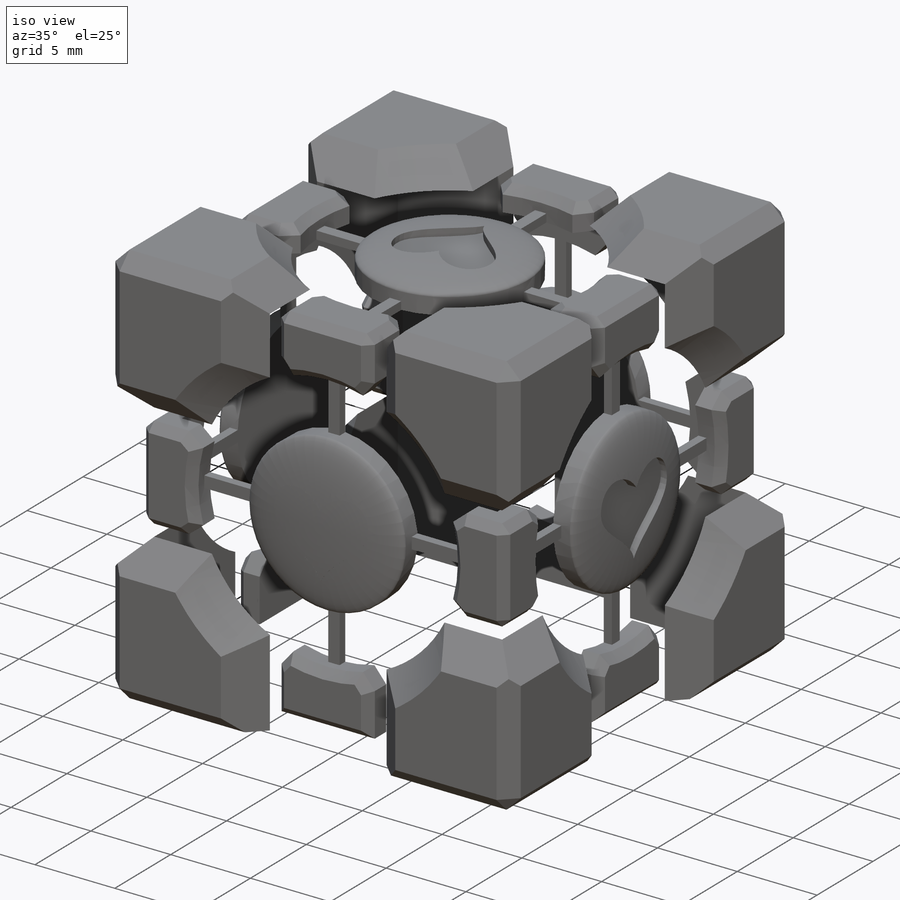
[diagram: iso view]
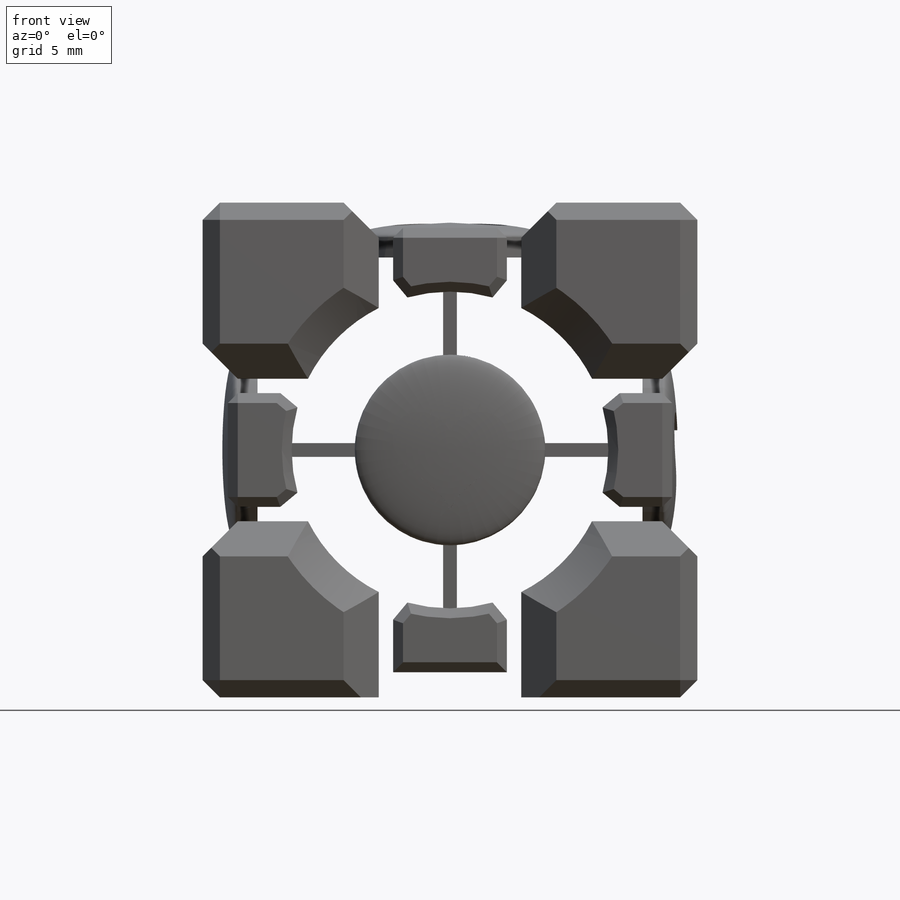
[diagram: front view]
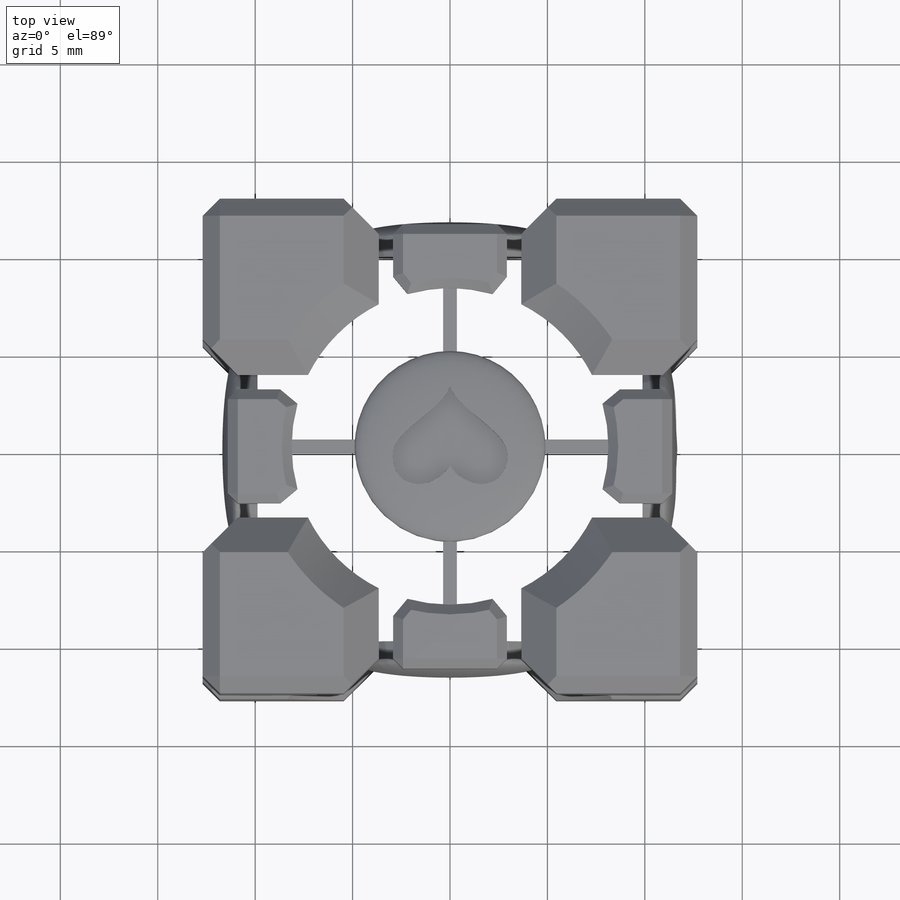
[diagram: top view]
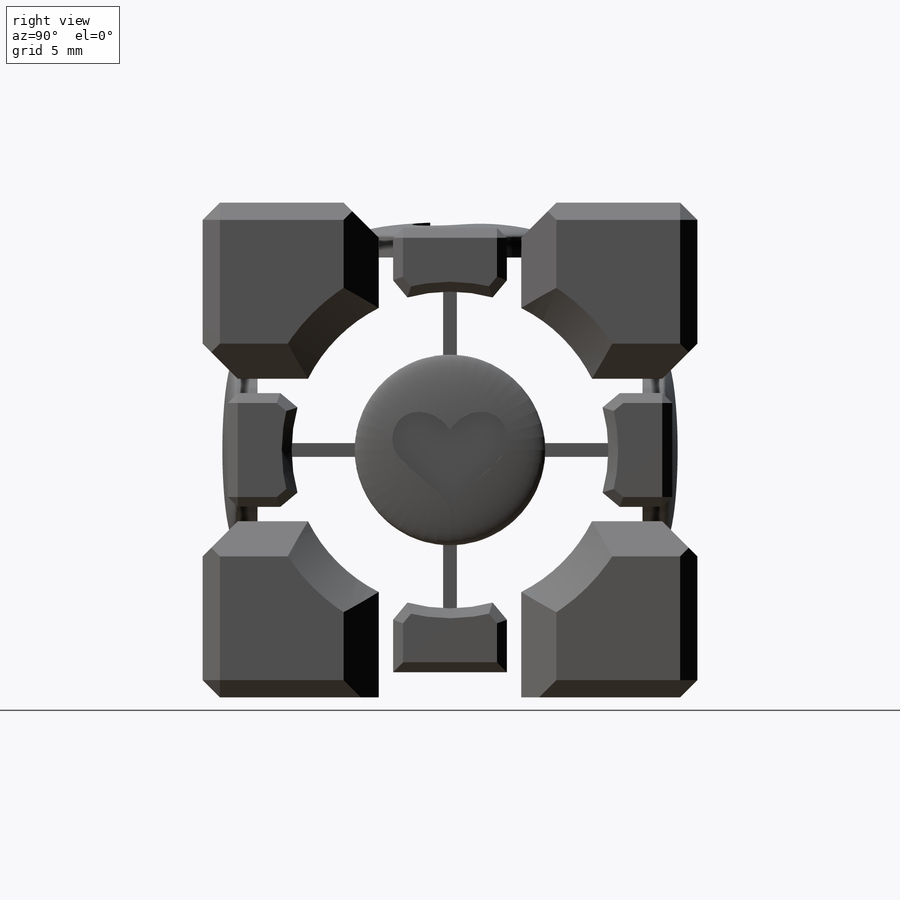
[diagram: right view]
SOLIDWORKS PART (.sldprt)
format: sldprt  version: not decoded by parser v0  size: 4,226,048 bytes
history: native  units: mm
features: sketch x30, extrude x23, cut_extrude x5, mirror x5, chamfer x5, material x1, dome x1, pattern_circular x1, boolean_combine x1 (+12 scaffold rows collapsed)
feature tree (84):
  scaffold x12  (default folders/planes/origin — collapsed)
  material  "Material <not specified>"
  sketch  "Cube Image and Outline"  dims[c1.D3=16.256mm c1.D6=9.779mm c1.D1=25.4mm c1.D2=25.4mm c2.D3=0.5588mm c2.D4=~21.885739mm c2.D1=21.7932mm c2.D2=25.4mm c3.D4=9.0678mm c3.D5=5.842mm]
  sketch  "Sketch10"
  extrude  "Basic Cube"  Depth=21.7932mm
  sketch  "Sketch11"
  extrude  "Large Nub Extrusion"  Depth=1.8034mm
  sketch  "Sketch12"
  extrude  "Small Nub Extrusion"  Depth=0.508mm
  sketch  "Sketch13"
  extrude  "Center Circe Mark Extrusion"  Depth=0.0254mm
  sketch  "Optional Crosshair extrude cut"  dims[D1=0.762mm]
  dome  "Circle Mark Rounding"
  sketch  "Sketch19"
  cut_extrude  "Heart Extruded Cut"  Depth=0.254mm
  pattern_circular  "Face Patterning"  Count=4 Angle=90deg
  sketch  "Sketch23"  dims[D1=0.3556mm D2=0.3556mm D3=4.0]
  cut_extrude  "Cut-Extrude3"  Depth=1.016mm
  sketch  "Sketch14"  dims[c1.D1=~14.123659mm c2.D1=90.0deg]
  cut_extrude  "Preparation For Mirroring"  [1 undecoded]
  sketch  "Sketch15"
  cut_extrude  "Preparation for Mirroring 2"  [1 undecoded]
  mirror  "Top Mirror"
  mirror  "Bottom Mirror"
  mirror  "Right Mirror"
  mirror  "Left Mirror"
  mirror  "Back Mirror"
  boolean_combine  "Combine Mirrors "
  chamfer  "Large Nub Face Chamfer"  Distance=1.8288mm Angle=45deg
  chamfer  "Large Nub Outside Chamfer"  Distance=0.889mm Angle=45deg
  chamfer  "Small Nub Chamfer"  Distance=0.508mm Angle=45deg
  sketch  "Sketch17"
  extrude  "Flat Bottom Extrude"  [1 undecoded]
  chamfer  "Bottom Chamfer"  Distance=0.762mm Angle=45deg
  sketch  "Sketch28"
  sketch  "Sketch29"  dims[D1=0.0mm D2=0.0mm]
  sketch  "Sketch30"  dims[D1=0.0mm D2=0.0mm]
  sketch  "Sketch31"  dims[D1=0.0mm]
  sketch  "Sketch32"
  sketch  "Sketch33"  dims[D1=0.0mm]
  cut_extrude  "Cut-Extrude9"  [1 undecoded]
  extrude  "Boss-Extrude1"  Depth=0.508mm
  sketch  "Sketch35"  dims[D1=0.0mm]
  extrude  "Boss-Extrude2"  [1 undecoded]
  extrude  "Boss-Extrude3"  Depth=0.508mm
  sketch  "Sketch36"  dims[D1=0.0mm]
  extrude  "Boss-Extrude4"  [1 undecoded]
  sketch  "Sketch37"
  extrude  "Boss-Extrude5"  [1 undecoded]
  sketch  "Sketch39"
  extrude  "Boss-Extrude6"  [1 undecoded]
  extrude  "Boss-Extrude7"  Depth=0.508mm
  sketch  "Sketch40"
  extrude  "Boss-Extrude8"  [1 undecoded]
  extrude  "Boss-Extrude9"  Depth=0.508mm
  sketch  "Sketch41"  dims[D1=0.0mm]
  extrude  "Boss-Extrude10"  [1 undecoded]
  extrude  "Boss-Extrude11"  Depth=0.508mm
  sketch  "Sketch43"
  extrude  "Boss-Extrude12"  [1 undecoded]
  sketch  "Sketch46"  dims[D1=0.0mm]
  extrude  "Boss-Extrude14"  [1 undecoded]
  sketch  "Sketch47"  dims[D1=0.0mm]
  extrude  "Boss-Extrude15"  [1 undecoded]
  sketch  "Sketch48"  dims[D1=0.0mm]
  extrude  "Boss-Extrude16"  [1 undecoded]
  sketch  "Sketch49"  dims[D1=0.0mm]
  extrude  "Boss-Extrude17"  [1 undecoded]
  sketch  "Sketch51"  dims[D1=0.0mm]
  extrude  "Boss-Extrude18"  Depth=0.254mm
  sketch  "Sketch52"
  extrude  "Boss-Extrude20"  [1 undecoded]
  chamfer  "Chamfer1"  Distance=1.27mm Angle=45deg
decode coverage: 34 of 71 modeling features carry decoded parameters
note: ~ marks probable driven/reference dimensions
note: 16 parameter values undecoded
summary: no parameter record found for 16 features
note: suppression state not decoded; provenance and decode notes live in map.json
